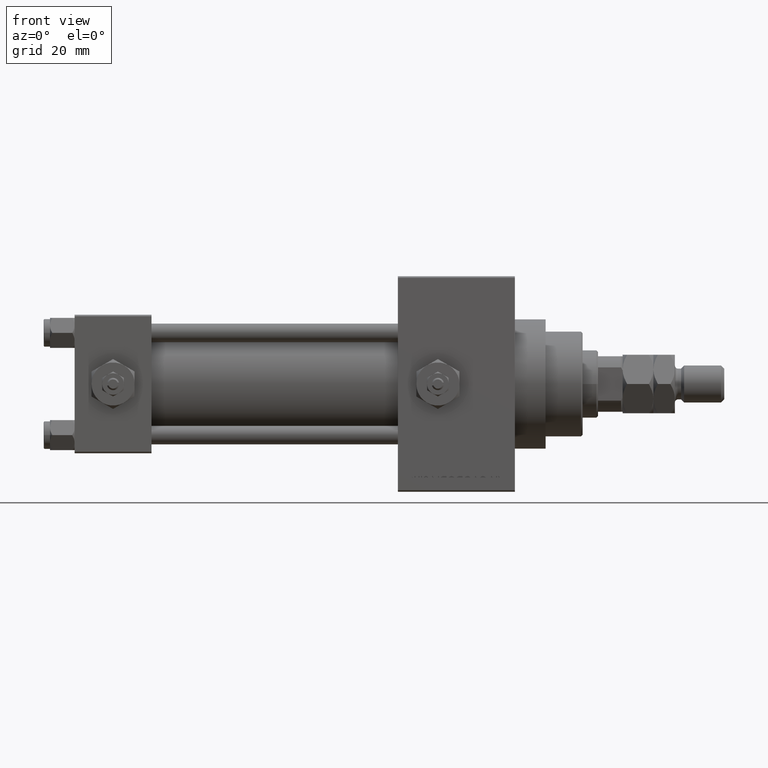
[diagram: clean part render]
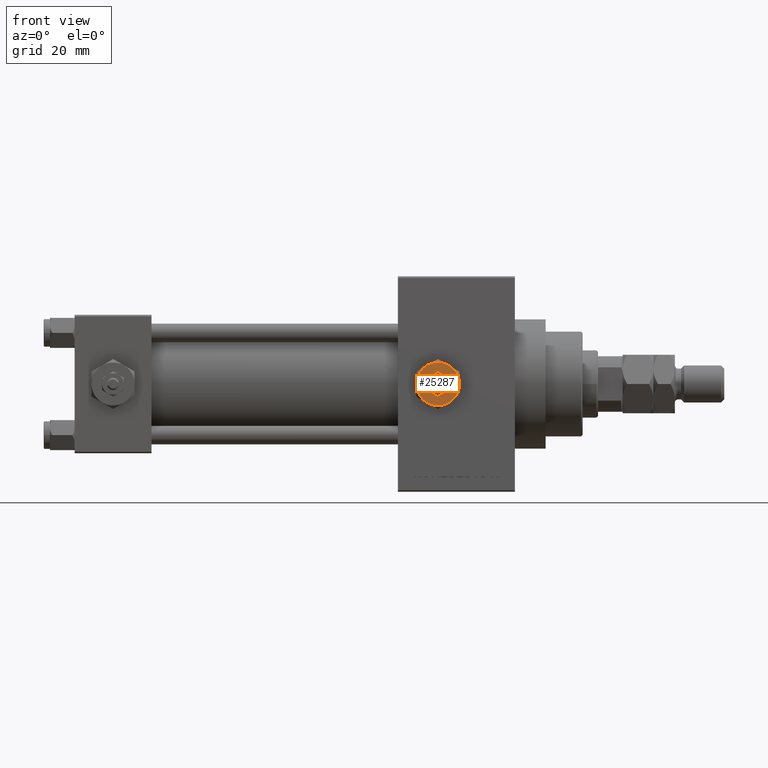
[diagram: same view with one face highlighted and labeled with its STEP entity id]
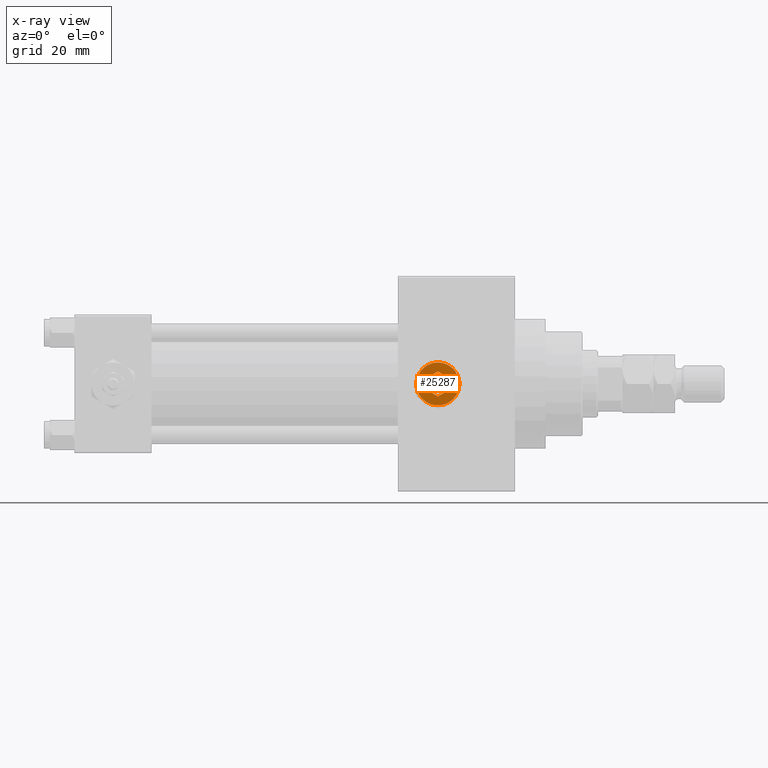
[diagram: x-ray of the same camera — body ghosted, the highlighted face saturated]
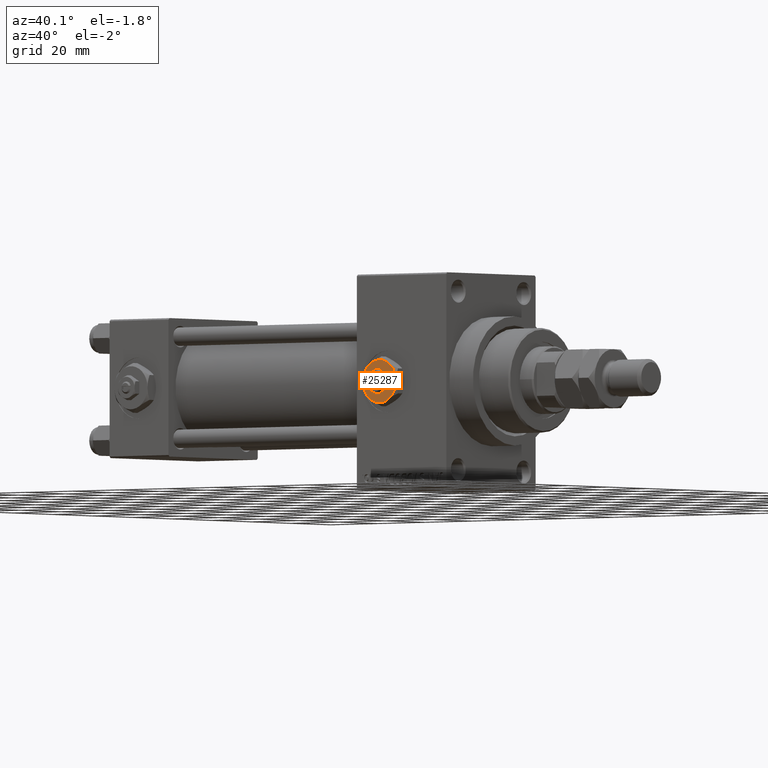
[diagram: same view with one face highlighted and labeled with its STEP entity id]
A machine part, front view. The second image highlights one B-rep face of the part: STEP entity #25287.
The next image is the same camera in x-ray: the body ghosted, the highlighted face saturated — about 0% of this face is hidden behind the body in this view.
A second angle (auxiliary view) of the same face is appended — the face is thin or edge-on in the first view.
In plain terms, the highlighted planar face has unit normal (0, -1, -0).
Its self-contained STEP definition (entity closure, byte-faithful):
#178 = DIRECTION ( 'NONE',  ( 1.000000000000000000, 0.000000000000000000, 0.000000000000000000 ) ) ;
#1231 = CARTESIAN_POINT ( 'NONE',  ( 3.499999999999999556, -2.020725942163690281, 4.299999999999999822 ) ) ;
#1995 = VECTOR ( 'NONE', #39646, 1000.000000000000227 ) ;
#2365 = VECTOR ( 'NONE', #19685, 1000.000000000000114 ) ;
#4374 = ORIENTED_EDGE ( 'NONE', *, *, #15297, .F. ) ;
#4457 = DIRECTION ( 'NONE',  ( 1.000000000000000000, 0.000000000000000000, 0.000000000000000000 ) ) ;
#5559 = CARTESIAN_POINT ( 'NONE',  ( -3.500000000000000888, 6.062177826491073063, 4.299999999999999822 ) ) ;
#6197 = FACE_BOUND ( 'NONE', #40524, .T. ) ;
#6204 = ORIENTED_EDGE ( 'NONE', *, *, #35696, .F. ) ;
#6287 = CARTESIAN_POINT ( 'NONE',  ( -3.499999999999999112, 2.020725942163690725, 4.299999999999999822 ) ) ;
#7050 = EDGE_CURVE ( 'NONE', #15506, #13073, #17285, .T. ) ;
#7178 = AXIS2_PLACEMENT_3D ( 'NONE', #50011, #41818, #22314 ) ;
#8640 = LINE ( 'NONE', #19892, #1995 ) ;
#8844 = VERTEX_POINT ( 'NONE', #6287 ) ;
#9415 = ORIENTED_EDGE ( 'NONE', *, *, #34285, .F. ) ;
#10260 = CIRCLE ( 'NONE', #42196, 7.000000000000001776 ) ;
#10449 = CARTESIAN_POINT ( 'NONE',  ( -3.499999999999998668, -2.020725942163689837, 4.299999999999999822 ) ) ;
#11340 = VERTEX_POINT ( 'NONE', #44625 ) ;
#12542 = VECTOR ( 'NONE', #29146, 1000.000000000000000 ) ;
#12716 = CIRCLE ( 'NONE', #17627, 7.000000000000001776 ) ;
#13049 = CIRCLE ( 'NONE', #19575, 7.000000000000001776 ) ;
#13073 = VERTEX_POINT ( 'NONE', #48177 ) ;
#13308 = VERTEX_POINT ( 'NONE', #15583 ) ;
#13642 = ORIENTED_EDGE ( 'NONE', *, *, #48759, .T. ) ;
#14187 = CARTESIAN_POINT ( 'NONE',  ( -3.499999999999999112, 2.020725942163690725, 4.299999999999999822 ) ) ;
#14284 = CARTESIAN_POINT ( 'NONE',  ( 3.500000000000000888, -6.062177826491073951, 4.299999999999999822 ) ) ;
#14387 = FACE_OUTER_BOUND ( 'NONE', #15338, .T. ) ;
#14456 = DIRECTION ( 'NONE',  ( 0.000000000000000000, 0.000000000000000000, 1.000000000000000000 ) ) ;
#15297 = EDGE_CURVE ( 'NONE', #16592, #19412, #24555, .T. ) ;
#15338 = EDGE_LOOP ( 'NONE', ( #44800, #35177, #13642, #33262, #34776, #37587 ) ) ;
#15506 = VERTEX_POINT ( 'NONE', #14284 ) ;
#15583 = CARTESIAN_POINT ( 'NONE',  ( -2.443687887572056883E-16, -4.041451884327378785, 4.299999999999999822 ) ) ;
#16385 = CARTESIAN_POINT ( 'NONE',  ( -7.000000000000001776, -2.253471898105739040E-15, 4.299999999999999822 ) ) ;
#16592 = VERTEX_POINT ( 'NONE', #29867 ) ;
#16605 = VERTEX_POINT ( 'NONE', #5559 ) ;
#17285 = CIRCLE ( 'NONE', #46742, 7.000000000000001776 ) ;
#17319 = EDGE_CURVE ( 'NONE', #36570, #11340, #37184, .T. ) ;
#17627 = AXIS2_PLACEMENT_3D ( 'NONE', #46843, #35045, #178 ) ;
#17652 = CARTESIAN_POINT ( 'NONE',  ( 0.000000000000000000, 0.000000000000000000, 4.299999999999999822 ) ) ;
#18961 = VERTEX_POINT ( 'NONE', #34880 ) ;
#19191 = DIRECTION ( 'NONE',  ( 1.000000000000000000, 0.000000000000000000, 0.000000000000000000 ) ) ;
#19223 = VECTOR ( 'NONE', #49809, 1000.000000000000000 ) ;
#19282 = EDGE_CURVE ( 'NONE', #16605, #36570, #47907, .T. ) ;
#19412 = VERTEX_POINT ( 'NONE', #46350 ) ;
#19575 = AXIS2_PLACEMENT_3D ( 'NONE', #34077, #42291, #19191 ) ;
#19685 = DIRECTION ( 'NONE',  ( -0.8660254037844387076, 0.4999999999999998335, 0.000000000000000000 ) ) ;
#19892 = CARTESIAN_POINT ( 'NONE',  ( -3.499999999999998668, -2.020725942163689837, 4.299999999999999822 ) ) ;
#22314 = DIRECTION ( 'NONE',  ( 1.000000000000000000, 0.000000000000000000, -0.000000000000000000 ) ) ;
#23029 = LINE ( 'NONE', #35325, #2365 ) ;
#24010 = DIRECTION ( 'NONE',  ( 0.000000000000000000, 0.000000000000000000, 1.000000000000000000 ) ) ;
#24129 = AXIS2_PLACEMENT_3D ( 'NONE', #17652, #37137, #29429 ) ;
#24555 = LINE ( 'NONE', #1231, #12542 ) ;
#25287 = ADVANCED_FACE ( 'NONE', ( #14387, #6197 ), #34107, .T. ) ;
#26238 = CARTESIAN_POINT ( 'NONE',  ( 0.000000000000000000, 0.000000000000000000, 4.299999999999999822 ) ) ;
#26316 = ORIENTED_EDGE ( 'NONE', *, *, #49732, .F. ) ;
#26470 = CARTESIAN_POINT ( 'NONE',  ( 0.000000000000000000, 4.041451884327380562, 4.299999999999999822 ) ) ;
#26516 = AXIS2_PLACEMENT_3D ( 'NONE', #36583, #24010, #39663 ) ;
#26718 = LINE ( 'NONE', #14187, #19223 ) ;
#26891 = LINE ( 'NONE', #44320, #31901 ) ;
#29146 = DIRECTION ( 'NONE',  ( -3.219245568722483357E-16, 1.000000000000000000, 0.000000000000000000 ) ) ;
#29429 = DIRECTION ( 'NONE',  ( 1.000000000000000000, 0.000000000000000000, 0.000000000000000000 ) ) ;
#29867 = CARTESIAN_POINT ( 'NONE',  ( 3.500000000000000000, -2.020725942163690281, 4.299999999999999822 ) ) ;
#30134 = VERTEX_POINT ( 'NONE', #36734 ) ;
#31013 = VERTEX_POINT ( 'NONE', #10449 ) ;
#31901 = VECTOR ( 'NONE', #47393, 1000.000000000000114 ) ;
#32366 = EDGE_CURVE ( 'NONE', #13073, #30134, #10260, .T. ) ;
#33262 = ORIENTED_EDGE ( 'NONE', *, *, #19282, .T. ) ;
#34077 = CARTESIAN_POINT ( 'NONE',  ( 0.000000000000000000, 0.000000000000000000, 4.299999999999999822 ) ) ;
#34107 = PLANE ( 'NONE',  #7178 ) ;
#34176 = DIRECTION ( 'NONE',  ( 1.000000000000000000, 0.000000000000000000, 0.000000000000000000 ) ) ;
#34285 = EDGE_CURVE ( 'NONE', #31013, #13308, #8640, .T. ) ;
#34776 = ORIENTED_EDGE ( 'NONE', *, *, #17319, .T. ) ;
#34880 = CARTESIAN_POINT ( 'NONE',  ( 0.000000000000000000, 4.041451884327380562, 4.299999999999999822 ) ) ;
#35045 = DIRECTION ( 'NONE',  ( 0.000000000000000000, 0.000000000000000000, 1.000000000000000000 ) ) ;
#35177 = ORIENTED_EDGE ( 'NONE', *, *, #32366, .T. ) ;
#35325 = CARTESIAN_POINT ( 'NONE',  ( 3.499999999999998224, 2.020725942163691613, 4.299999999999999822 ) ) ;
#35661 = EDGE_CURVE ( 'NONE', #8844, #31013, #26718, .T. ) ;
#35696 = EDGE_CURVE ( 'NONE', #18961, #8844, #42125, .T. ) ;
#35987 = CARTESIAN_POINT ( 'NONE',  ( 0.000000000000000000, 0.000000000000000000, 4.299999999999999822 ) ) ;
#36570 = VERTEX_POINT ( 'NONE', #16385 ) ;
#36583 = CARTESIAN_POINT ( 'NONE',  ( 0.000000000000000000, 0.000000000000000000, 4.299999999999999822 ) ) ;
#36734 = CARTESIAN_POINT ( 'NONE',  ( 3.500000000000000444, 6.062177826491073063, 4.299999999999999822 ) ) ;
#36851 = EDGE_CURVE ( 'NONE', #11340, #15506, #12716, .T. ) ;
#37137 = DIRECTION ( 'NONE',  ( 0.000000000000000000, 0.000000000000000000, 1.000000000000000000 ) ) ;
#37184 = CIRCLE ( 'NONE', #26516, 7.000000000000001776 ) ;
#37245 = VECTOR ( 'NONE', #37516, 1000.000000000000227 ) ;
#37516 = DIRECTION ( 'NONE',  ( -0.8660254037844385966, -0.4999999999999998890, 0.000000000000000000 ) ) ;
#37587 = ORIENTED_EDGE ( 'NONE', *, *, #36851, .T. ) ;
#39572 = DIRECTION ( 'NONE',  ( 0.000000000000000000, 0.000000000000000000, 1.000000000000000000 ) ) ;
#39646 = DIRECTION ( 'NONE',  ( 0.8660254037844385966, -0.4999999999999998890, 0.000000000000000000 ) ) ;
#39663 = DIRECTION ( 'NONE',  ( 1.000000000000000000, 0.000000000000000000, 0.000000000000000000 ) ) ;
#40524 = EDGE_LOOP ( 'NONE', ( #6204, #49778, #4374, #26316, #9415, #40727 ) ) ;
#40727 = ORIENTED_EDGE ( 'NONE', *, *, #35661, .F. ) ;
#41818 = DIRECTION ( 'NONE',  ( 0.000000000000000000, 0.000000000000000000, 1.000000000000000000 ) ) ;
#42125 = LINE ( 'NONE', #26470, #37245 ) ;
#42196 = AXIS2_PLACEMENT_3D ( 'NONE', #35987, #39572, #4457 ) ;
#42291 = DIRECTION ( 'NONE',  ( 0.000000000000000000, 0.000000000000000000, 1.000000000000000000 ) ) ;
#43826 = EDGE_CURVE ( 'NONE', #19412, #18961, #23029, .T. ) ;
#44320 = CARTESIAN_POINT ( 'NONE',  ( -2.443687887572056883E-16, -4.041451884327378785, 4.299999999999999822 ) ) ;
#44625 = CARTESIAN_POINT ( 'NONE',  ( -3.500000000000000000, -6.062177826491073063, 4.299999999999999822 ) ) ;
#44800 = ORIENTED_EDGE ( 'NONE', *, *, #7050, .T. ) ;
#46350 = CARTESIAN_POINT ( 'NONE',  ( 3.499999999999998224, 2.020725942163691613, 4.299999999999999822 ) ) ;
#46742 = AXIS2_PLACEMENT_3D ( 'NONE', #26238, #14456, #34176 ) ;
#46843 = CARTESIAN_POINT ( 'NONE',  ( 0.000000000000000000, 0.000000000000000000, 4.299999999999999822 ) ) ;
#47393 = DIRECTION ( 'NONE',  ( 0.8660254037844388186, 0.4999999999999996669, 0.000000000000000000 ) ) ;
#47907 = CIRCLE ( 'NONE', #24129, 7.000000000000001776 ) ;
#48177 = CARTESIAN_POINT ( 'NONE',  ( 6.999999999999994671, 3.004629197474313724E-15, 4.299999999999999822 ) ) ;
#48759 = EDGE_CURVE ( 'NONE', #30134, #16605, #13049, .T. ) ;
#49732 = EDGE_CURVE ( 'NONE', #13308, #16592, #26891, .T. ) ;
#49778 = ORIENTED_EDGE ( 'NONE', *, *, #43826, .F. ) ;
#49809 = DIRECTION ( 'NONE',  ( 1.073081856240828196E-16, -1.000000000000000000, 0.000000000000000000 ) ) ;
#50011 = CARTESIAN_POINT ( 'NONE',  ( 0.000000000000000000, 0.000000000000000000, 4.299999999999999822 ) ) ;